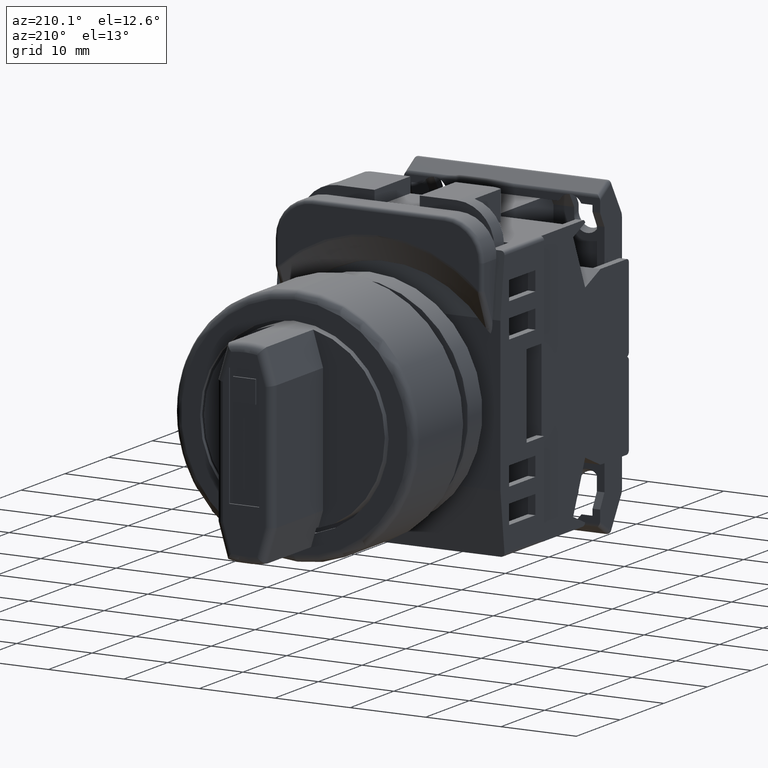
[diagram: clean part render]
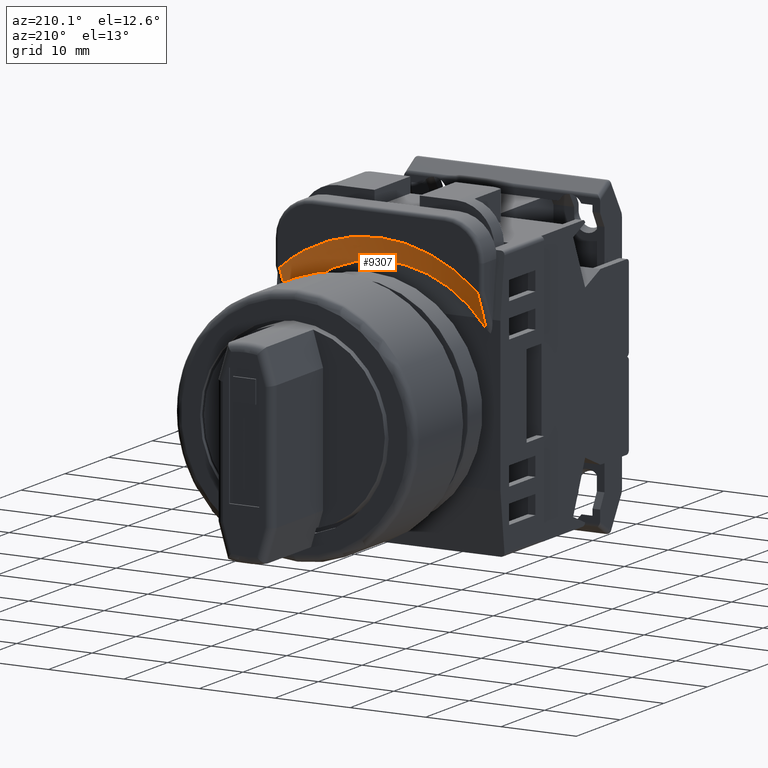
[diagram: same view with one face highlighted and labeled with its STEP entity id]
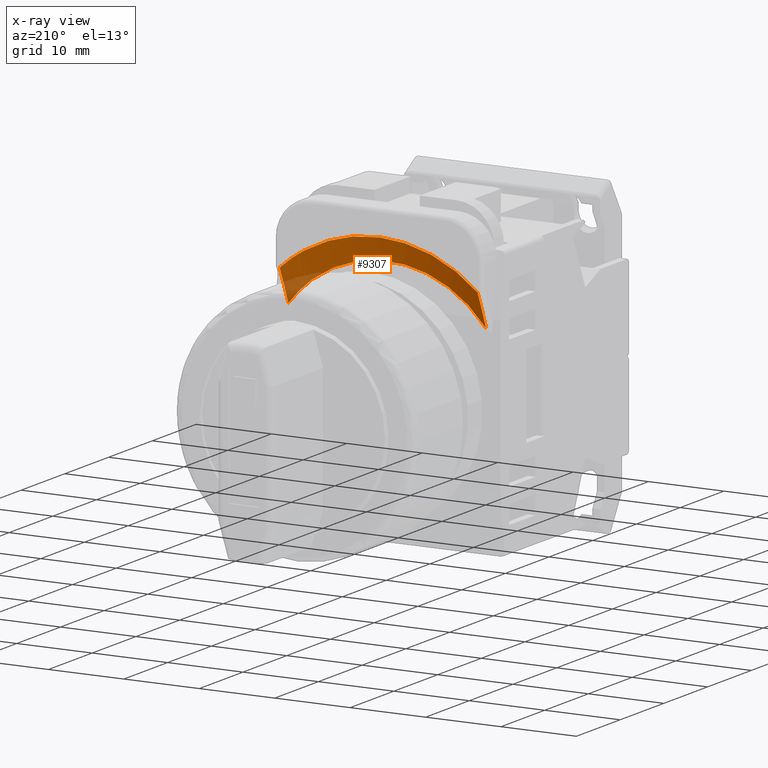
[diagram: x-ray of the same camera — body ghosted, the highlighted face saturated]
A machine part, auxiliary view. The second image highlights one B-rep face of the part: STEP entity #9307.
The next image is the same camera in x-ray: the body ghosted, the highlighted face saturated — about 8% of this face is hidden behind the body in this view.
In plain terms, the highlighted face is a freeform B-spline surface patch.
Its self-contained STEP definition (entity closure, byte-faithful):
#251 = CARTESIAN_POINT ( 'NONE',  ( 5.851399671255007800, -10.09230795359526800, 14.40209993004655900 ) ) ;
#299 = CARTESIAN_POINT ( 'NONE',  ( -7.890224703291509400, -10.11494049982781000, 13.46298925854215000 ) ) ;
#521 = ORIENTED_EDGE ( 'NONE', *, *, #13481, .T. ) ;
#765 = CARTESIAN_POINT ( 'NONE',  ( 8.152688078167896500, -8.268893647178183300, 16.84142266741878300 ) ) ;
#841 = CARTESIAN_POINT ( 'NONE',  ( -12.70052994284315400, -10.21047545796590200, 9.501158466426142400 ) ) ;
#904 = CARTESIAN_POINT ( 'NONE',  ( -8.669043018704609700, -10.12627330096205500, 12.99358259844935600 ) ) ;
#915 = CARTESIAN_POINT ( 'NONE',  ( -13.10733398796369700, -9.612079261916207400, 10.52028199953229800 ) ) ;
#943 = B_SPLINE_CURVE_WITH_KNOTS ( 'NONE', 3,
 ( #8142, #915, #11632, #3623 ),
 .UNSPECIFIED., .F., .F.,
 ( 4, 4 ),
 ( 0.0000000000000000000, 0.004948860834991678500 ),
 .UNSPECIFIED. ) ;
#957 = CARTESIAN_POINT ( 'NONE',  ( -3.903203825626054200, -10.07809993806013100, 14.99168777397074400 ) ) ;
#1017 = CARTESIAN_POINT ( 'NONE',  ( 7.584990394454242100, -10.11146691215316400, 13.60725396130459500 ) ) ;
#1086 = CARTESIAN_POINT ( 'NONE',  ( 11.41938735473992300, -10.17765774090579000, 10.86077330984016100 ) ) ;
#1141 = CARTESIAN_POINT ( 'NONE',  ( 17.08622559025147300, -8.200000000000006400, 8.911891058916552300 ) ) ;
#1193 = CARTESIAN_POINT ( 'NONE',  ( 4.433964522464732400, -8.200000000000009900, 18.21026502158927200 ) ) ;
#1214 = CARTESIAN_POINT ( 'NONE',  ( -12.20839234419538900, -8.271685913146932000, 14.32389812573423300 ) ) ;
#1250 = CARTESIAN_POINT ( 'NONE',  ( -11.70734402922231600, -8.200000000000009900, 14.87013954811893300 ) ) ;
#1312 = CARTESIAN_POINT ( 'NONE',  ( 11.50256323856498900, -10.17911393134528800, 10.80018880534053900 ) ) ;
#1579 = CARTESIAN_POINT ( 'NONE',  ( 3.706076356587977700, -10.07656672736386700, 15.05526344883839900 ) ) ;
#1628 = CARTESIAN_POINT ( 'NONE',  ( -9.785443858498572600, -10.14405244285667300, 12.25502369931031600 ) ) ;
#2096 = CARTESIAN_POINT ( 'NONE',  ( 10.74844620130951300, -8.270512861198765700, 15.37792972597215700 ) ) ;
#2170 = CARTESIAN_POINT ( 'NONE',  ( -12.28452792422189100, -10.19892886386547400, 9.980113119443489100 ) ) ;
#2226 = CARTESIAN_POINT ( 'NONE',  ( -8.000770427819807300, -10.11685691684665000, 13.38355864957374000 ) ) ;
#2278 = B_SPLINE_CURVE_WITH_KNOTS ( 'NONE', 3,
 ( #14185, #841, #2170, #11560, #3541, #12899, #4887, #14251, #6225, #15595, #7584, #16915, #8920, #904, #10271, #2226, #11622, #3614, #12963, #4942, #14320, #6304, #15641, #7652, #16991, #8988, #957, #10336, #2303, #11679, #3672, #13034, #5008, #14385, #6361, #15717, #7707, #17055, #9061, #1017, #10393, #2368, #11750, #3734, #13096, #5088, #14444, #6417, #15777, #7785, #17112, #9120, #1086, #10458, #2422, #11818, #3800 ),
 .UNSPECIFIED., .F., .F.,
 ( 4, 2, 2, 2, 1, 1, 2, 2, 2, 2, 2, 2, 2, 2, 2, 2, 2, 2, 1, 2, 2, 2, 2, 2, 2, 1, 1, 2, 2, 2, 4 ),
 ( 0.03555742678547820600, 0.09361278946453494000, 0.1226404708040633700, 0.1262689309715043800, 0.1298973911389453800, 0.1371543114738273400, 0.1516681521435913100, 0.2097235148226469800, 0.2387511961621748600, 0.2532650368319387900, 0.2677788775017028200, 0.3258342401807586300, 0.3548619215202865600, 0.3693757621900505300, 0.3838896028598144900, 0.5000003282179262800, 0.6161110535760380100, 0.6306248942458020400, 0.6451387349155659500, 0.6741664162550939900, 0.7322217789341498600, 0.7467356196039138800, 0.7612494602736779000, 0.7902771416132060600, 0.8483325042922621500, 0.8628463449620262800, 0.8701032652969084000, 0.8737317254643494100, 0.8773601856317905200, 0.9063878669713192300, 0.9644432296503766500 ),
 .UNSPECIFIED. ) ;
#2303 = CARTESIAN_POINT ( 'NONE',  ( -1.254487020412931900, -10.06677412257098500, 15.46161895448306600 ) ) ;
#2368 = CARTESIAN_POINT ( 'NONE',  ( 8.000780024262841300, -10.11685690085100500, 13.38355326215678300 ) ) ;
#2422 = CARTESIAN_POINT ( 'NONE',  ( 12.28452286162801100, -10.19892832357972900, 9.980118357756342800 ) ) ;
#2475 = CARTESIAN_POINT ( 'NONE',  ( 16.61198060309852300, -8.200000000000006400, 9.677215800908101100 ) ) ;
#2545 = CARTESIAN_POINT ( 'NONE',  ( 1.786590876695345600, -8.200000000000009900, 18.63410076497228500 ) ) ;
#2568 = CARTESIAN_POINT ( 'NONE',  ( -10.74804349161642500, -8.270512572392261700, 15.37818988020667100 ) ) ;
#2599 = CARTESIAN_POINT ( 'NONE',  ( -13.76171249859124600, -8.200000000000006400, 13.13481274624047200 ) ) ;
#2650 = CARTESIAN_POINT ( 'NONE',  ( 9.785443858498609900, -10.14405244285667600, 12.25502369931028200 ) ) ;
#2925 = CARTESIAN_POINT ( 'NONE',  ( 1.493300673351457300, -10.06800331900666900, 15.41059192536365800 ) ) ;
#2981 = CARTESIAN_POINT ( 'NONE',  ( -11.50256323856499400, -10.17911393134528800, 10.80018880534053400 ) ) ;
#3414 = CARTESIAN_POINT ( 'NONE',  ( -4.157950452751197000, -8.267466054480848900, 18.14138316953298600 ) ) ;
#3469 = CARTESIAN_POINT ( 'NONE',  ( 12.20839858011605500, -8.271685927906617100, 14.32388509238215900 ) ) ;
#3541 = CARTESIAN_POINT ( 'NONE',  ( -11.41937975565428500, -10.17765778756825900, 10.86078076493766700 ) ) ;
#3614 = CARTESIAN_POINT ( 'NONE',  ( -7.584981947355672100, -10.11146662476201300, 13.60725829378449500 ) ) ;
#3623 = CARTESIAN_POINT ( 'NONE',  ( -13.12679574797515200, -8.272567532034759800, 13.53572649994417400 ) ) ;
#3672 = CARTESIAN_POINT ( 'NONE',  ( 2.515154518982939600, -10.07027449971973400, 15.31715338490196700 ) ) ;
#3734 = CARTESIAN_POINT ( 'NONE',  ( 8.669028978040001800, -10.12627277700411500, 12.99359121543224100 ) ) ;
#3753 = CARTESIAN_POINT ( 'NONE',  ( 13.12679574797512300, -8.272567532034770500, 13.53572649994420200 ) ) ;
#3800 = CARTESIAN_POINT ( 'NONE',  ( 13.09555279232544400, -10.22280860765221400, 8.987819555216436400 ) ) ;
#3864 = CARTESIAN_POINT ( 'NONE',  ( 14.99347918413433200, -8.200000000000006400, 11.83064466446044500 ) ) ;
#3915 = CARTESIAN_POINT ( 'NONE',  ( -0.8932995805756180900, -8.200000000000009900, 18.69496490912887100 ) ) ;
#3930 = CARTESIAN_POINT ( 'NONE',  ( -8.153200319147380500, -8.268894012189978300, 16.84109204533668300 ) ) ;
#3959 = CARTESIAN_POINT ( 'NONE',  ( -15.56561119500022800, -8.200000000000006400, 11.13660402668013600 ) ) ;
#4019 = CARTESIAN_POINT ( 'NONE',  ( 7.890224703291502300, -10.11494049982781700, 13.46298925854215700 ) ) ;
#4294 = CARTESIAN_POINT ( 'NONE',  ( -0.7466537989093243700, -10.06677358666611100, 15.46161821079558900 ) ) ;
#4338 = CARTESIAN_POINT ( 'NONE',  ( -13.01033044657314300, -10.21948682937399500, 9.124963270009510900 ) ) ;
#4652 = VERTEX_POINT ( 'NONE', #3753 ) ;
#4677 = ORIENTED_EDGE ( 'NONE', *, *, #6346, .T. ) ;
#4747 = CARTESIAN_POINT ( 'NONE',  ( -1.208218673532400100, -8.266987243848591400, 18.57898878436719100 ) ) ;
#4801 = CARTESIAN_POINT ( 'NONE',  ( 13.12679574797512300, -8.272567532034770500, 13.53572649994420200 ) ) ;
#4887 = CARTESIAN_POINT ( 'NONE',  ( -11.14171562736095200, -10.17147238451097700, 11.11732753236813800 ) ) ;
#4942 = CARTESIAN_POINT ( 'NONE',  ( -6.726751404484303100, -10.10117850867771100, 14.03486959277042900 ) ) ;
#5008 = CARTESIAN_POINT ( 'NONE',  ( 4.056432393859700400, -10.07902201612786900, 14.95338796116738000 ) ) ;
#5088 = CARTESIAN_POINT ( 'NONE',  ( 9.971912587890800600, -10.14758192587392200, 12.10995633283878600 ) ) ;
#5194 = CARTESIAN_POINT ( 'NONE',  ( 13.10208924729800700, -8.200000000000004600, 13.74492809540723600 ) ) ;
#5251 = CARTESIAN_POINT ( 'NONE',  ( -3.556931556704858300, -8.200000000000009900, 18.39174969742126500 ) ) ;
#5279 = CARTESIAN_POINT ( 'NONE',  ( -5.894657845722295300, -8.267971933232676200, 17.67984258385181900 ) ) ;
#5316 = CARTESIAN_POINT ( 'NONE',  ( -17.08622559025142000, -8.200000000000002800, 8.911891058916644700 ) ) ;
#5634 = CARTESIAN_POINT ( 'NONE',  ( -2.973018813643219200, -10.07289991206105400, 15.20741360224730300 ) ) ;
#5694 = CARTESIAN_POINT ( 'NONE',  ( -14.28131785054895200, -10.26443614268215600, 7.259844808711701300 ) ) ;
#6093 = CARTESIAN_POINT ( 'NONE',  ( 2.399872816896503100, -8.267108701301921800, 18.46773878046993600 ) ) ;
#6225 = CARTESIAN_POINT ( 'NONE',  ( -10.99103820167668700, -10.16817728974415800, 11.25408865885954200 ) ) ;
#6304 = CARTESIAN_POINT ( 'NONE',  ( -5.253879339589675900, -10.08751882769979800, 14.60168697960818600 ) ) ;
#6346 = EDGE_CURVE ( 'NONE', #9031, #10060, #943, .T. ) ;
#6361 = CARTESIAN_POINT ( 'NONE',  ( 4.806916915316826100, -10.08398844051844600, 14.74770081977385200 ) ) ;
#6392 = CARTESIAN_POINT ( 'NONE',  ( 13.11767586694123400, -8.954915006239820800, 12.03379594375804000 ) ) ;
#6417 = CARTESIAN_POINT ( 'NONE',  ( 10.77833514155946700, -10.16364426583869100, 11.44236519334728500 ) ) ;
#6530 = CARTESIAN_POINT ( 'NONE',  ( 10.97223499728817900, -8.200000000000008200, 15.38522521646835100 ) ) ;
#6552 = CARTESIAN_POINT ( 'NONE',  ( -13.12679574797515200, -8.272567532034759800, 13.53572649994417400 ) ) ;
#6587 = CARTESIAN_POINT ( 'NONE',  ( -6.155825671210099200, -8.200000000000009900, 17.72997379224295100 ) ) ;
#6638 = CARTESIAN_POINT ( 'NONE',  ( 14.63316101044156700, -10.28047921238629100, 6.594156652900943900 ) ) ;
#6975 = CARTESIAN_POINT ( 'NONE',  ( -5.145273458949082700, -10.08627079312871900, 14.65260474561018900 ) ) ;
#7298 = EDGE_CURVE ( 'NONE', #10060, #4652, #11726, .T. ) ;
#7447 = CARTESIAN_POINT ( 'NONE',  ( 4.739131022516988700, -8.267614292903575200, 18.00590751708547900 ) ) ;
#7584 = CARTESIAN_POINT ( 'NONE',  ( -10.59345930320148100, -10.15987750904214500, 11.59891051839149500 ) ) ;
#7652 = CARTESIAN_POINT ( 'NONE',  ( -4.506939913833116800, -10.08195826719186000, 14.83174169346583100 ) ) ;
#7707 = CARTESIAN_POINT ( 'NONE',  ( 6.142092896130091800, -10.09521095843379100, 14.28298411585181400 ) ) ;
#7785 = CARTESIAN_POINT ( 'NONE',  ( 11.08154805127523400, -10.17015064308141900, 11.17218029185508300 ) ) ;
#7792 = CARTESIAN_POINT ( 'NONE',  ( -13.09555278679637900, -10.22280867618934000, 8.987819553812714800 ) ) ;
#7903 = CARTESIAN_POINT ( 'NONE',  ( 8.642680803763946400, -8.200000000000009900, 16.72168183271409700 ) ) ;
#7923 = CARTESIAN_POINT ( 'NONE',  ( -12.67728775693552900, -8.272114820242412800, 13.93984551067367100 ) ) ;
#7945 = CARTESIAN_POINT ( 'NONE',  ( -8.642680803763884300, -8.200000000000009900, 16.72168183271411800 ) ) ;
#8008 = CARTESIAN_POINT ( 'NONE',  ( 13.88492583495785500, -10.24897310447958700, 7.901465245082957400 ) ) ;
#8142 = CARTESIAN_POINT ( 'NONE',  ( -13.09555278679637900, -10.22280867618934000, 8.987819553812714800 ) ) ;
#8321 = CARTESIAN_POINT ( 'NONE',  ( -7.223881657621641100, -10.10664287341579000, 13.80728942837789600 ) ) ;
#8564 = FACE_OUTER_BOUND ( 'NONE', #16558, .T. ) ;
#8787 = CARTESIAN_POINT ( 'NONE',  ( 6.467666519728279400, -8.268181221964470100, 17.48931699682334400 ) ) ;
#8841 = EDGE_CURVE ( 'NONE', #9031, #17179, #2278, .T. ) ;
#8920 = CARTESIAN_POINT ( 'NONE',  ( -9.457861435768277800, -10.13856964228723700, 12.48418458833718400 ) ) ;
#8988 = CARTESIAN_POINT ( 'NONE',  ( -4.056413476576017800, -10.07902193397733900, 14.95339284551780100 ) ) ;
#9031 = VERTEX_POINT ( 'NONE', #7792 ) ;
#9056 = CARTESIAN_POINT ( 'NONE',  ( -4.739883296404062900, -8.267614474686903100, 18.00574116742717500 ) ) ;
#9061 = CARTESIAN_POINT ( 'NONE',  ( 7.442570684221577100, -10.10970737590116800, 13.68037185121606400 ) ) ;
#9093 = CARTESIAN_POINT ( 'NONE',  ( 13.09555279232544400, -10.22280860765221400, 8.987819555216436400 ) ) ;
#9120 = CARTESIAN_POINT ( 'NONE',  ( 11.16962757595004000, -10.17209034920199800, 11.09168808181496900 ) ) ;
#9180 = B_SPLINE_SURFACE_WITH_KNOTS ( 'NONE', 1, 3, ( 
 ( #10524, #1141, #2475, #11859, #3864, #13205, #5194, #14573, #6530, #15883, #7903, #17237, #9229, #1193, #10584, #2545, #11908, #3915, #13274, #5251, #14625, #6587, #15960, #7945, #17288, #9293, #1250, #10627, #2599, #11973, #3959, #13317, #5316, #14674 ),
 ( #6638, #16008, #8008, #17328, #9340, #1312, #10687, #2650, #12032, #4019, #16017, #251, #9601, #1579, #10964, #2925, #12286, #4294, #13647, #5634, #14994, #6975, #16327, #8321, #299, #9669, #1628, #11018, #2981, #12356, #4338, #13705, #5694, #15046 ) ),
 .UNSPECIFIED., .F., .F., .F.,
 ( 2, 2 ),
 ( 4, 2, 2, 2, 2, 2, 2, 2, 2, 2, 2, 2, 2, 2, 2, 2, 4 ),
 ( 0.0000000000000000000, 1.000000000000000000 ),
 ( 2.061499266060988800, 2.196510939502089400, 2.331522612943190100, 2.466534286384290700, 2.601545959825391400, 2.736557633266492000, 2.871569306707592700, 3.006580980148693300, 3.141592653589793600, 3.276604327030893800, 3.411616000471994400, 3.546627673913095100, 3.681639347354195700, 3.816651020795296400, 3.951662694236397000, 4.086674367677497700, 4.221686041118598400 ),
 .UNSPECIFIED. ) ;
#9229 = CARTESIAN_POINT ( 'NONE',  ( 6.155825671210092100, -8.200000000000009900, 17.72997379224295100 ) ) ;
#9293 = CARTESIAN_POINT ( 'NONE',  ( -10.97223499728819400, -8.200000000000008200, 15.38522521646834600 ) ) ;
#9307 = ADVANCED_FACE ( 'NONE', ( #8564 ), #9180, .T. ) ;
#9340 = CARTESIAN_POINT ( 'NONE',  ( 12.53212072983405400, -10.20546405406398100, 9.706821705310193900 ) ) ;
#9601 = CARTESIAN_POINT ( 'NONE',  ( 5.145273458949074700, -10.08627079312872300, 14.65260474561018700 ) ) ;
#9669 = CARTESIAN_POINT ( 'NONE',  ( -9.171011742733998800, -10.13364537128265800, 12.68685279506704300 ) ) ;
#9891 = ORIENTED_EDGE ( 'NONE', *, *, #7298, .T. ) ;
#10060 = VERTEX_POINT ( 'NONE', #11472 ) ;
#10134 = B_SPLINE_CURVE_WITH_KNOTS ( 'NONE', 3,
 ( #15754, #6392, #17087, #9093 ),
 .UNSPECIFIED., .F., .F.,
 ( 4, 4 ),
 ( 0.0000000000000000000, 0.004949021853232406200 ),
 .UNSPECIFIED. ) ;
#10136 = CARTESIAN_POINT ( 'NONE',  ( 9.222293050857977900, -8.269476835370234400, 16.31251125404754300 ) ) ;
#10271 = CARTESIAN_POINT ( 'NONE',  ( -8.403147581579771600, -10.12237963965468700, 13.15473118159151900 ) ) ;
#10336 = CARTESIAN_POINT ( 'NONE',  ( -2.515197201327261200, -10.07027390081338500, 15.31714281369560700 ) ) ;
#10393 = CARTESIAN_POINT ( 'NONE',  ( 7.868191072254504100, -10.11509545511584000, 13.45660082395346000 ) ) ;
#10458 = CARTESIAN_POINT ( 'NONE',  ( 11.63843741761529300, -10.18282218926078600, 10.64703698785789000 ) ) ;
#10524 = CARTESIAN_POINT ( 'NONE',  ( 17.50717214891100300, -8.200000000000008200, 8.117858345472782800 ) ) ;
#10584 = CARTESIAN_POINT ( 'NONE',  ( 3.556931556704924400, -8.200000000000009900, 18.39174969742126100 ) ) ;
#10606 = CARTESIAN_POINT ( 'NONE',  ( -11.24368714486469000, -8.270885051404555100, 15.04296071225223300 ) ) ;
#10627 = CARTESIAN_POINT ( 'NONE',  ( -13.10208924729795200, -8.200000000000006400, 13.74492809540726600 ) ) ;
#10687 = CARTESIAN_POINT ( 'NONE',  ( 10.95122501213402400, -10.16678682830718500, 11.31168733020237500 ) ) ;
#10964 = CARTESIAN_POINT ( 'NONE',  ( 2.973018813643269800, -10.07289991206105700, 15.20741360224729600 ) ) ;
#10979 = ORIENTED_EDGE ( 'NONE', *, *, #8841, .F. ) ;
#11018 = CARTESIAN_POINT ( 'NONE',  ( -10.95122501213397600, -10.16678682830718600, 11.31168733020241000 ) ) ;
#11471 = CARTESIAN_POINT ( 'NONE',  ( 11.24403466769936200, -8.270885330325519600, 15.04271006126565200 ) ) ;
#11472 = CARTESIAN_POINT ( 'NONE',  ( -13.12679574797515200, -8.272567532034759800, 13.53572649994417400 ) ) ;
#11560 = CARTESIAN_POINT ( 'NONE',  ( -11.63843411491429700, -10.18282242388193400, 10.64704033779318200 ) ) ;
#11596 = CARTESIAN_POINT ( 'NONE',  ( 13.09555279232544400, -10.22280860765221400, 8.987819555216436400 ) ) ;
#11622 = CARTESIAN_POINT ( 'NONE',  ( -7.868169952897695800, -10.11509520801166500, 13.45661223926293500 ) ) ;
#11632 = CARTESIAN_POINT ( 'NONE',  ( -13.11767586693923700, -8.954915006388009900, 12.03379594343185700 ) ) ;
#11679 = CARTESIAN_POINT ( 'NONE',  ( 1.254508297445543000, -10.06677305075198200, 15.46161746710238400 ) ) ;
#11726 = B_SPLINE_CURVE_WITH_KNOTS ( 'NONE', 3,
 ( #6552, #7923, #1214, #10606, #2568, #11934, #3930, #13291, #5279, #9056, #3414, #12767, #4747, #14129, #6093, #15447, #7447, #16791, #8787, #765, #10136, #2096, #11471, #3469, #12829, #4801 ),
 .UNSPECIFIED., .F., .F.,
 ( 4, 2, 2, 2, 2, 2, 2, 2, 2, 2, 2, 2, 4 ),
 ( 2.333831747142486500E-017, 0.001812519149213422900, 0.003625038298426822400, 0.007250076596853621500, 0.009062595746067015100, 0.01087511489528041200, 0.01450015319370720100, 0.01812519149213399200, 0.01993771064134738600, 0.02175022979056077900, 0.02537526808898756300, 0.02718778723820095700, 0.02900030638741435100 ),
 .UNSPECIFIED. ) ;
#11750 = CARTESIAN_POINT ( 'NONE',  ( 8.403140946068669200, -10.12237922163937000, 13.15473489297673400 ) ) ;
#11818 = CARTESIAN_POINT ( 'NONE',  ( 12.70052537090489000, -10.21047505575931200, 9.501164441175848900 ) ) ;
#11859 = CARTESIAN_POINT ( 'NONE',  ( 15.56561119500026700, -8.200000000000009900, 11.13660402668008100 ) ) ;
#11908 = CARTESIAN_POINT ( 'NONE',  ( 0.8932995805755938900, -8.200000000000009900, 18.69496490912886300 ) ) ;
#11934 = CARTESIAN_POINT ( 'NONE',  ( -9.222123656710719400, -8.269476751247921700, 16.31258788626405100 ) ) ;
#11973 = CARTESIAN_POINT ( 'NONE',  ( -14.99347918413433500, -8.200000000000009900, 11.83064466446043800 ) ) ;
#12032 = CARTESIAN_POINT ( 'NONE',  ( 9.171011742733984600, -10.13364537128265000, 12.68685279506704700 ) ) ;
#12286 = CARTESIAN_POINT ( 'NONE',  ( 0.7466537989093137200, -10.06677358666611400, 15.46161821079558200 ) ) ;
#12356 = CARTESIAN_POINT ( 'NONE',  ( -12.53212072983405200, -10.20546405406398800, 9.706821705310193900 ) ) ;
#12767 = CARTESIAN_POINT ( 'NONE',  ( -2.398771845886428000, -8.267108493012532500, 18.46792900412918600 ) ) ;
#12829 = CARTESIAN_POINT ( 'NONE',  ( 12.67728828266187700, -8.272114820771882600, 13.93984503803245200 ) ) ;
#12899 = CARTESIAN_POINT ( 'NONE',  ( -11.16961322871306100, -10.17209005425783100, 11.09170128634358000 ) ) ;
#12963 = CARTESIAN_POINT ( 'NONE',  ( -7.442567890155245900, -10.10970709501502900, 13.68037324025927900 ) ) ;
#13034 = CARTESIAN_POINT ( 'NONE',  ( 3.903218431887014000, -10.07810013956141000, 14.99168425073116000 ) ) ;
#13096 = CARTESIAN_POINT ( 'NONE',  ( 9.457834635191215300, -10.13856909259530600, 12.48420288836126900 ) ) ;
#13205 = CARTESIAN_POINT ( 'NONE',  ( 13.76171249859124200, -8.200000000000009900, 13.13481274624048300 ) ) ;
#13274 = CARTESIAN_POINT ( 'NONE',  ( -1.786590876695293600, -8.200000000000009900, 18.63410076497229500 ) ) ;
#13291 = CARTESIAN_POINT ( 'NONE',  ( -6.470260760457499300, -8.268182244776463500, 17.48838616834576200 ) ) ;
#13317 = CARTESIAN_POINT ( 'NONE',  ( -16.61198060309849100, -8.200000000000009900, 9.677215800908138400 ) ) ;
#13481 = EDGE_CURVE ( 'NONE', #4652, #17179, #10134, .T. ) ;
#13647 = CARTESIAN_POINT ( 'NONE',  ( -1.493300673351411800, -10.06800331900666900, 15.41059192536366900 ) ) ;
#13705 = CARTESIAN_POINT ( 'NONE',  ( -13.88492583495781900, -10.24897310447958700, 7.901465245082995600 ) ) ;
#14129 = CARTESIAN_POINT ( 'NONE',  ( 1.209811771078428600, -8.266987352402742000, 18.57889019384393900 ) ) ;
#14185 = CARTESIAN_POINT ( 'NONE',  ( -13.09555278679637900, -10.22280867618934000, 8.987819553812714800 ) ) ;
#14251 = CARTESIAN_POINT ( 'NONE',  ( -11.08153454232807400, -10.17015029597632600, 11.17219254744071400 ) ) ;
#14320 = CARTESIAN_POINT ( 'NONE',  ( -6.142122761437836000, -10.09521120226228400, 14.28297236307519200 ) ) ;
#14385 = CARTESIAN_POINT ( 'NONE',  ( 4.356950752447293200, -10.08094280697734000, 14.87376274607452100 ) ) ;
#14444 = CARTESIAN_POINT ( 'NONE',  ( 10.59345409385957400, -10.15987766605042500, 11.59891490970616500 ) ) ;
#14573 = CARTESIAN_POINT ( 'NONE',  ( 11.70734402922236400, -8.200000000000011700, 14.87013954811889200 ) ) ;
#14625 = CARTESIAN_POINT ( 'NONE',  ( -4.433964522464746600, -8.200000000000009900, 18.21026502158925800 ) ) ;
#14674 = CARTESIAN_POINT ( 'NONE',  ( -17.50717214891100300, -8.200000000000008200, 8.117858345472754400 ) ) ;
#14994 = CARTESIAN_POINT ( 'NONE',  ( -3.706076356587991500, -10.07656672736386700, 15.05526344883838700 ) ) ;
#15046 = CARTESIAN_POINT ( 'NONE',  ( -14.63316101044156700, -10.28047921238629500, 6.594156652900932300 ) ) ;
#15447 = CARTESIAN_POINT ( 'NONE',  ( 4.157737091880784800, -8.267466018860572400, 18.14141570089256200 ) ) ;
#15595 = CARTESIAN_POINT ( 'NONE',  ( -10.77833421496822400, -10.16364401618222500, 11.44236588043475000 ) ) ;
#15641 = CARTESIAN_POINT ( 'NONE',  ( -4.955912335860074500, -10.08516555825842400, 14.69902732518657600 ) ) ;
#15717 = CARTESIAN_POINT ( 'NONE',  ( 5.253858025220496900, -10.08751836098486300, 14.60169414348572700 ) ) ;
#15754 = CARTESIAN_POINT ( 'NONE',  ( 13.12679574797512300, -8.272567532034770500, 13.53572649994420200 ) ) ;
#15777 = CARTESIAN_POINT ( 'NONE',  ( 10.99104773095541200, -10.16817761395390300, 11.25408016638179400 ) ) ;
#15883 = CARTESIAN_POINT ( 'NONE',  ( 9.439896279112604200, -8.200000000000011700, 16.31100065158152600 ) ) ;
#15960 = CARTESIAN_POINT ( 'NONE',  ( -7.000637885666490600, -8.200000000000009900, 17.43117169294625400 ) ) ;
#16008 = CARTESIAN_POINT ( 'NONE',  ( 14.28131785054898900, -10.26443614268215800, 7.259844808711634700 ) ) ;
#16017 = CARTESIAN_POINT ( 'NONE',  ( 7.223881657621691800, -10.10664287341579600, 13.80728942837787800 ) ) ;
#16327 = CARTESIAN_POINT ( 'NONE',  ( -5.851399671254956300, -10.09230795359526300, 14.40209993004658700 ) ) ;
#16558 = EDGE_LOOP ( 'NONE', ( #9891, #521, #10979, #4677 ) ) ;
#16791 = CARTESIAN_POINT ( 'NONE',  ( 5.892632840344133700, -8.267971255436663100, 17.68045992288725200 ) ) ;
#16915 = CARTESIAN_POINT ( 'NONE',  ( -9.971935221872717700, -10.14758210694760300, 12.10993831859734500 ) ) ;
#16991 = CARTESIAN_POINT ( 'NONE',  ( -4.356945252646686300, -10.08094300231725700, 14.87376429759757100 ) ) ;
#17055 = CARTESIAN_POINT ( 'NONE',  ( 6.726729560102430000, -10.10117866446226400, 14.03488025634747900 ) ) ;
#17087 = CARTESIAN_POINT ( 'NONE',  ( 13.10733398795597200, -9.612079262138724500, 10.52028199897628200 ) ) ;
#17112 = CARTESIAN_POINT ( 'NONE',  ( 11.14173185261088500, -10.17147274466194800, 11.11731267352622700 ) ) ;
#17179 = VERTEX_POINT ( 'NONE', #11596 ) ;
#17237 = CARTESIAN_POINT ( 'NONE',  ( 7.000637885666553700, -8.200000000000009900, 17.43117169294622600 ) ) ;
#17288 = CARTESIAN_POINT ( 'NONE',  ( -9.439896279112607800, -8.200000000000011700, 16.31100065158150900 ) ) ;
#17328 = CARTESIAN_POINT ( 'NONE',  ( 13.01033044657316800, -10.21948682937399200, 9.124963270009473600 ) ) ;